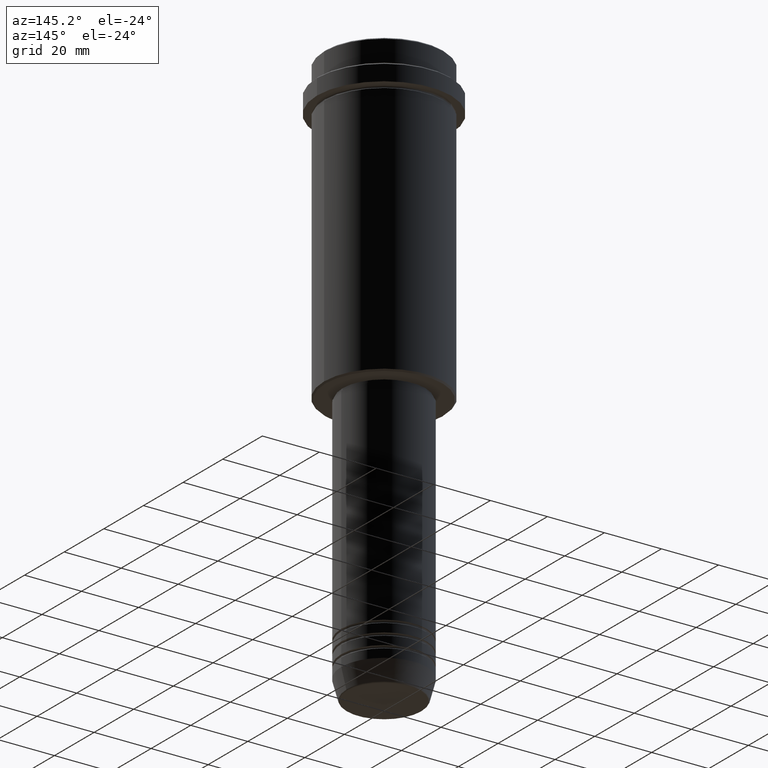
[diagram: clean part render]
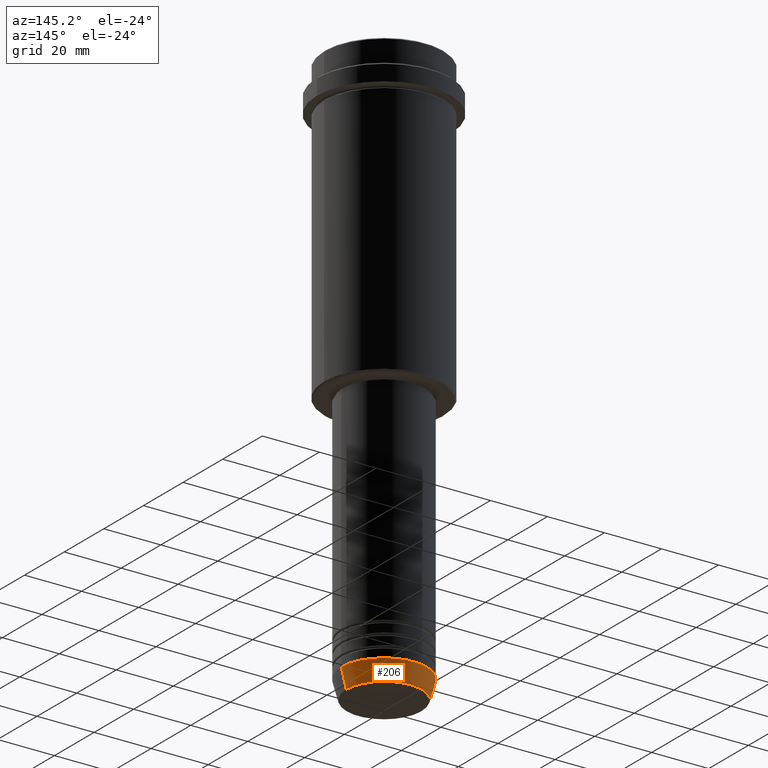
[diagram: same view with one face highlighted and labeled with its STEP entity id]
A machine part, auxiliary view. The second image highlights one B-rep face of the part: STEP entity #206.
In plain terms, the highlighted conical surface has half-angle 15 deg.
Its self-contained STEP definition (entity closure, byte-faithful):
#3 = EDGE_CURVE ( 'NONE', #366, #621, #1255, .T. ) ;
#84 = VERTEX_POINT ( 'NONE', #796 ) ;
#133 = DIRECTION ( 'NONE',  ( -0.2588190451025213501, 3.169619151431772337E-17, 0.9659258262890680902 ) ) ;
#183 = ORIENTED_EDGE ( 'NONE', *, *, #924, .T. ) ;
#201 = ORIENTED_EDGE ( 'NONE', *, *, #3, .F. ) ;
#202 = CARTESIAN_POINT ( 'NONE',  ( -15.00000000000000000, 1.836970198721029589E-15, -193.0000000000000000 ) ) ;
#206 = ADVANCED_FACE ( 'NONE', ( #1301 ), #535, .T. ) ;
#228 = DIRECTION ( 'NONE',  ( 1.000000000000000000, 0.000000000000000000, 0.000000000000000000 ) ) ;
#231 = DIRECTION ( 'NONE',  ( 1.000000000000000000, 0.000000000000000000, 0.000000000000000000 ) ) ;
#320 = CARTESIAN_POINT ( 'NONE',  ( 0.000000000000000000, 0.000000000000000000, -199.6294095225512706 ) ) ;
#366 = VERTEX_POINT ( 'NONE', #952 ) ;
#401 = CIRCLE ( 'NONE', #1114, 13.22365507213719482 ) ;
#467 = ORIENTED_EDGE ( 'NONE', *, *, #1414, .T. ) ;
#503 = CARTESIAN_POINT ( 'NONE',  ( 15.00000000000000000, 0.000000000000000000, -193.0000000000000000 ) ) ;
#504 = VERTEX_POINT ( 'NONE', #202 ) ;
#535 = CONICAL_SURFACE ( 'NONE', #1333, 15.00000000000000000, 0.2617993877991500740 ) ;
#621 = VERTEX_POINT ( 'NONE', #914 ) ;
#656 = CARTESIAN_POINT ( 'NONE',  ( 0.000000000000000000, 0.000000000000000000, -193.0000000000000000 ) ) ;
#674 = LINE ( 'NONE', #1203, #741 ) ;
#741 = VECTOR ( 'NONE', #133, 1000.000000000000000 ) ;
#779 = DIRECTION ( 'NONE',  ( -0.000000000000000000, -0.000000000000000000, 1.000000000000000000 ) ) ;
#780 = EDGE_LOOP ( 'NONE', ( #467, #183, #799, #201 ) ) ;
#796 = CARTESIAN_POINT ( 'NONE',  ( -13.22365507213719660, 1.728200442216588780E-15, -199.6294095225512706 ) ) ;
#799 = ORIENTED_EDGE ( 'NONE', *, *, #1010, .F. ) ;
#853 = DIRECTION ( 'NONE',  ( 0.2588190451025213501, 0.000000000000000000, 0.9659258262890680902 ) ) ;
#869 = CARTESIAN_POINT ( 'NONE',  ( 0.000000000000000000, 0.000000000000000000, -193.0000000000000000 ) ) ;
#872 = DIRECTION ( 'NONE',  ( -0.000000000000000000, -0.000000000000000000, 1.000000000000000000 ) ) ;
#914 = CARTESIAN_POINT ( 'NONE',  ( 15.00000000000000000, 0.000000000000000000, -193.0000000000000000 ) ) ;
#924 = EDGE_CURVE ( 'NONE', #84, #504, #674, .T. ) ;
#952 = CARTESIAN_POINT ( 'NONE',  ( 13.22365507213719482, 0.000000000000000000, -199.6294095225512706 ) ) ;
#967 = AXIS2_PLACEMENT_3D ( 'NONE', #656, #980, #231 ) ;
#980 = DIRECTION ( 'NONE',  ( -0.000000000000000000, -0.000000000000000000, 1.000000000000000000 ) ) ;
#1010 = EDGE_CURVE ( 'NONE', #621, #504, #1405, .T. ) ;
#1113 = DIRECTION ( 'NONE',  ( 1.000000000000000000, 0.000000000000000000, 0.000000000000000000 ) ) ;
#1114 = AXIS2_PLACEMENT_3D ( 'NONE', #320, #872, #228 ) ;
#1169 = VECTOR ( 'NONE', #853, 1000.000000000000000 ) ;
#1203 = CARTESIAN_POINT ( 'NONE',  ( -15.00000000000000000, 1.836970198721029589E-15, -193.0000000000000000 ) ) ;
#1255 = LINE ( 'NONE', #503, #1169 ) ;
#1301 = FACE_OUTER_BOUND ( 'NONE', #780, .T. ) ;
#1333 = AXIS2_PLACEMENT_3D ( 'NONE', #869, #779, #1113 ) ;
#1405 = CIRCLE ( 'NONE', #967, 15.00000000000000000 ) ;
#1414 = EDGE_CURVE ( 'NONE', #366, #84, #401, .T. ) ;